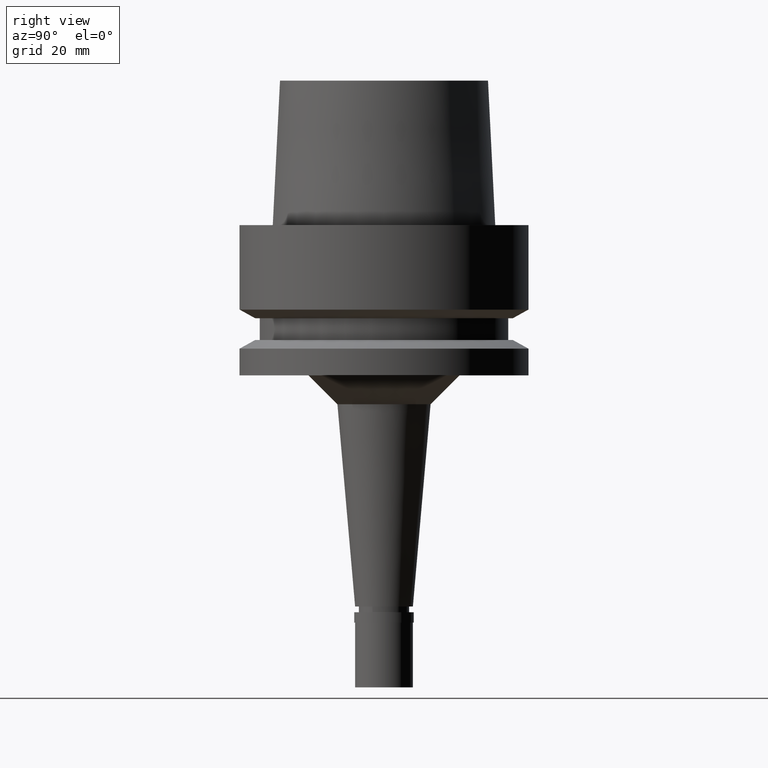
[diagram: clean part render]
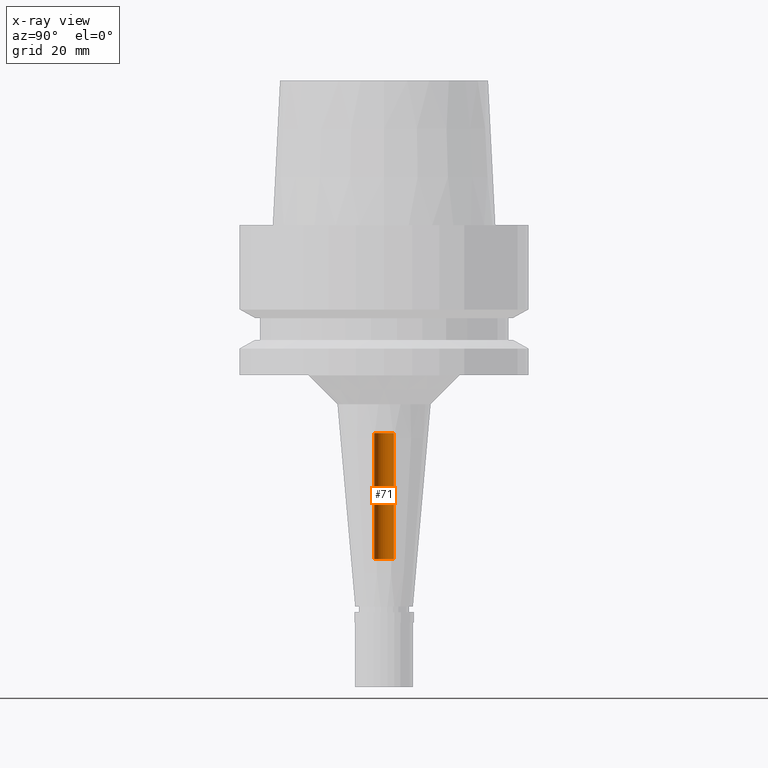
[diagram: x-ray — body ghosted, one internal face saturated and labeled with its STEP entity id]
A machine part, right view, then the same camera in x-ray: the body is ghosted and one INTERNAL B-rep face — a face not visible from any outside direction — is saturated and labeled: STEP entity #71.
In plain terms, the highlighted cylindrical surface (edge-blend (fillet) strip) has radius 1.7 mm, axis along (0, 0, -1).
Its self-contained STEP definition (entity closure, byte-faithful):
#12 = VERTEX_POINT ( 'NONE', #169 ) ;
#71 = ADVANCED_FACE ( 'NONE', ( #1602 ), #1986, .F. ) ;
#80 = DIRECTION ( 'NONE',  ( 0.0000000000000000000, 0.0000000000000000000, 1.000000000000000000 ) ) ;
#110 = AXIS2_PLACEMENT_3D ( 'NONE', #504, #80, #2126 ) ;
#169 = CARTESIAN_POINT ( 'NONE',  ( 0.0000000000000000000, -1.699999999999999956, -36.00000000000000000 ) ) ;
#198 = AXIS2_PLACEMENT_3D ( 'NONE', #1207, #954, #1784 ) ;
#296 = CARTESIAN_POINT ( 'NONE',  ( 0.0000000000000000000, 1.699999999999999956, -57.79999999999999716 ) ) ;
#327 = ORIENTED_EDGE ( 'NONE', *, *, #1690, .T. ) ;
#390 = ORIENTED_EDGE ( 'NONE', *, *, #1955, .T. ) ;
#471 = CARTESIAN_POINT ( 'NONE',  ( 0.0000000000000000000, 1.699999999999999956, -57.79999999999999716 ) ) ;
#504 = CARTESIAN_POINT ( 'NONE',  ( 0.0000000000000000000, 0.0000000000000000000, -36.00000000000000000 ) ) ;
#515 = EDGE_CURVE ( 'NONE', #716, #12, #1208, .T. ) ;
#602 = CARTESIAN_POINT ( 'NONE',  ( 0.0000000000000000000, -1.699999999999999956, -57.79999999999999716 ) ) ;
#660 = CARTESIAN_POINT ( 'NONE',  ( 0.0000000000000000000, -1.699999999999999956, -57.79999999999999716 ) ) ;
#713 = VECTOR ( 'NONE', #1306, 1000.000000000000000 ) ;
#716 = VERTEX_POINT ( 'NONE', #2319 ) ;
#793 = DIRECTION ( 'NONE',  ( 0.0000000000000000000, -1.000000000000000000, 0.0000000000000000000 ) ) ;
#872 = DIRECTION ( 'NONE',  ( 0.0000000000000000000, 0.0000000000000000000, 1.000000000000000000 ) ) ;
#954 = DIRECTION ( 'NONE',  ( 0.0000000000000000000, 0.0000000000000000000, -1.000000000000000000 ) ) ;
#1005 = DIRECTION ( 'NONE',  ( 0.0000000000000000000, 0.0000000000000000000, -1.000000000000000000 ) ) ;
#1207 = CARTESIAN_POINT ( 'NONE',  ( 0.0000000000000000000, 0.0000000000000000000, 30.06500000000000128 ) ) ;
#1208 = CIRCLE ( 'NONE', #110, 1.699999999999999956 ) ;
#1306 = DIRECTION ( 'NONE',  ( 0.0000000000000000000, 0.0000000000000000000, 1.000000000000000000 ) ) ;
#1402 = VERTEX_POINT ( 'NONE', #296 ) ;
#1422 = CARTESIAN_POINT ( 'NONE',  ( 0.0000000000000000000, 0.0000000000000000000, -57.79999999999999716 ) ) ;
#1533 = LINE ( 'NONE', #660, #1758 ) ;
#1602 = FACE_OUTER_BOUND ( 'NONE', #2362, .T. ) ;
#1690 = EDGE_CURVE ( 'NONE', #2188, #1402, #1712, .T. ) ;
#1712 = CIRCLE ( 'NONE', #2057, 1.699999999999999956 ) ;
#1758 = VECTOR ( 'NONE', #872, 1000.000000000000000 ) ;
#1784 = DIRECTION ( 'NONE',  ( 0.0000000000000000000, -1.000000000000000000, 0.0000000000000000000 ) ) ;
#1795 = EDGE_CURVE ( 'NONE', #2188, #12, #1533, .T. ) ;
#1949 = ORIENTED_EDGE ( 'NONE', *, *, #1795, .F. ) ;
#1955 = EDGE_CURVE ( 'NONE', #1402, #716, #2321, .T. ) ;
#1986 = CYLINDRICAL_SURFACE ( 'NONE', #198, 1.699999999999999956 ) ;
#2057 = AXIS2_PLACEMENT_3D ( 'NONE', #1422, #1005, #793 ) ;
#2087 = ORIENTED_EDGE ( 'NONE', *, *, #515, .T. ) ;
#2126 = DIRECTION ( 'NONE',  ( 0.0000000000000000000, 1.000000000000000000, 0.0000000000000000000 ) ) ;
#2188 = VERTEX_POINT ( 'NONE', #602 ) ;
#2319 = CARTESIAN_POINT ( 'NONE',  ( 0.0000000000000000000, 1.699999999999999956, -36.00000000000000000 ) ) ;
#2321 = LINE ( 'NONE', #471, #713 ) ;
#2362 = EDGE_LOOP ( 'NONE', ( #2087, #1949, #327, #390 ) ) ;